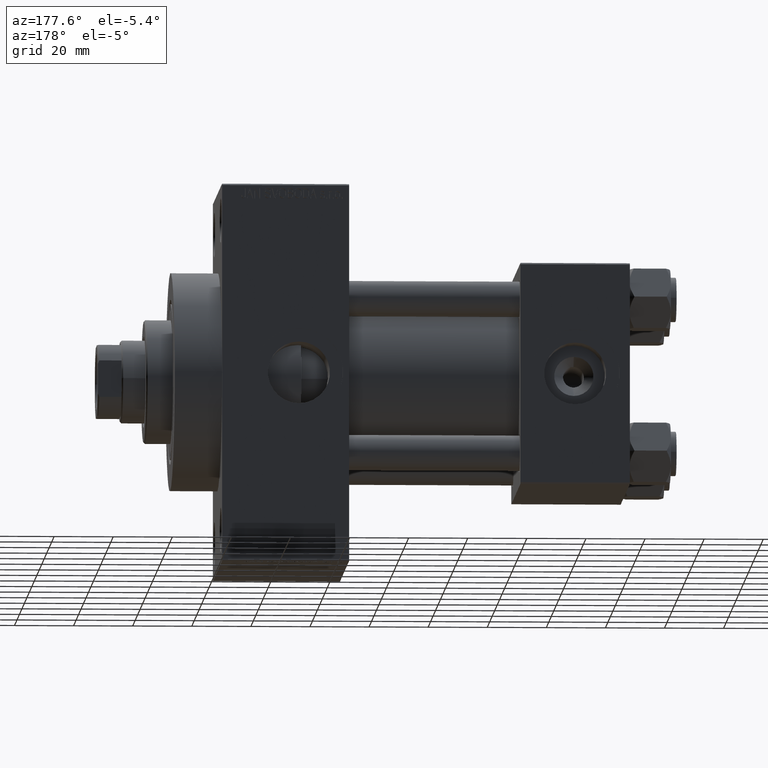
[diagram: clean part render]
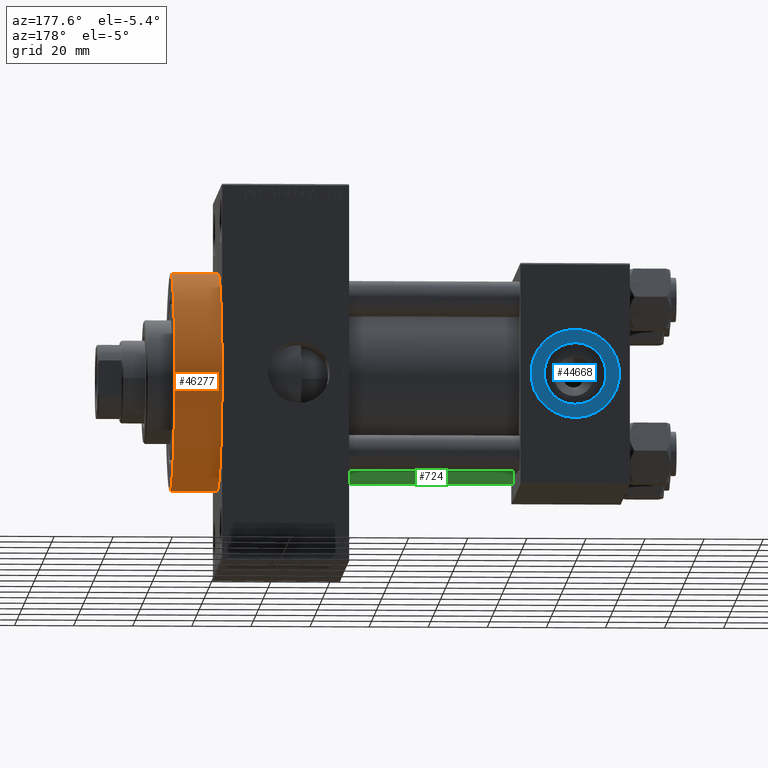
[diagram: same view with three faces highlighted in distinct colors, each labeled with its STEP entity id]
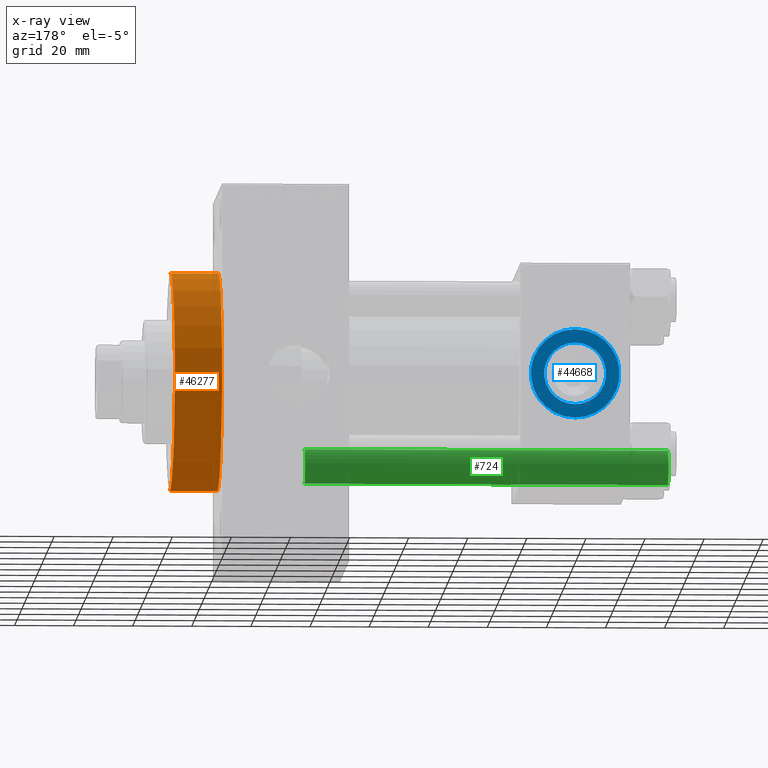
[diagram: x-ray of the same camera — body ghosted, the three highlighted faces saturated]
A machine part, auxiliary view with three faces highlighted in distinct colors.
The next image is the same camera in x-ray (body ghosted, the three faces saturated) — at least one of them is partly hidden behind the body in this view.
Their STEP definitions:

[orange] entity #46277 — the highlighted cylindrical surface (partial cylindrical patch) has radius 37 mm, axis along (-1, -0, -0).
#369 = VERTEX_POINT ( 'NONE', #37200 ) ;
#2930 = VERTEX_POINT ( 'NONE', #41847 ) ;
#3771 = CIRCLE ( 'NONE', #15691, 37.00000000000000000 ) ;
#7061 = VECTOR ( 'NONE', #18352, 1000.000000000000000 ) ;
#7423 = CARTESIAN_POINT ( 'NONE',  ( 154.0000000000000284, 0.000000000000000000, 0.000000000000000000 ) ) ;
#8397 = CARTESIAN_POINT ( 'NONE',  ( 154.0000000000000284, 4.531193156845206793E-15, -37.00000000000000000 ) ) ;
#8796 = ORIENTED_EDGE ( 'NONE', *, *, #17735, .T. ) ;
#10776 = VERTEX_POINT ( 'NONE', #29964 ) ;
#10952 = FACE_OUTER_BOUND ( 'NONE', #17259, .T. ) ;
#11030 = ORIENTED_EDGE ( 'NONE', *, *, #34763, .T. ) ;
#11519 = CARTESIAN_POINT ( 'NONE',  ( 154.0000000000000284, 4.531193156845206793E-15, -37.00000000000000000 ) ) ;
#15125 = DIRECTION ( 'NONE',  ( 1.000000000000000000, 0.000000000000000000, 0.000000000000000000 ) ) ;
#15379 = CYLINDRICAL_SURFACE ( 'NONE', #17065, 37.00000000000000000 ) ;
#15691 = AXIS2_PLACEMENT_3D ( 'NONE', #7423, #15125, #18375 ) ;
#15732 = AXIS2_PLACEMENT_3D ( 'NONE', #20648, #24393, #35809 ) ;
#16569 = CIRCLE ( 'NONE', #15732, 37.00000000000000000 ) ;
#17065 = AXIS2_PLACEMENT_3D ( 'NONE', #18861, #34005, #23098 ) ;
#17259 = EDGE_LOOP ( 'NONE', ( #27310, #8796, #11030, #41631 ) ) ;
#17735 = EDGE_CURVE ( 'NONE', #27940, #369, #45541, .T. ) ;
#18352 = DIRECTION ( 'NONE',  ( -1.000000000000000000, -0.000000000000000000, -0.000000000000000000 ) ) ;
#18375 = DIRECTION ( 'NONE',  ( 0.000000000000000000, 0.000000000000000000, -1.000000000000000000 ) ) ;
#18861 = CARTESIAN_POINT ( 'NONE',  ( 154.0000000000000284, 0.000000000000000000, 0.000000000000000000 ) ) ;
#20648 = CARTESIAN_POINT ( 'NONE',  ( 138.0000000000000000, 0.000000000000000000, 0.000000000000000000 ) ) ;
#23098 = DIRECTION ( 'NONE',  ( 0.000000000000000000, 0.000000000000000000, 1.000000000000000000 ) ) ;
#23349 = VECTOR ( 'NONE', #23437, 1000.000000000000000 ) ;
#23437 = DIRECTION ( 'NONE',  ( -1.000000000000000000, -0.000000000000000000, -0.000000000000000000 ) ) ;
#24393 = DIRECTION ( 'NONE',  ( 1.000000000000000000, 0.000000000000000000, 0.000000000000000000 ) ) ;
#27310 = ORIENTED_EDGE ( 'NONE', *, *, #29467, .F. ) ;
#27940 = VERTEX_POINT ( 'NONE', #8397 ) ;
#29467 = EDGE_CURVE ( 'NONE', #27940, #10776, #3771, .T. ) ;
#29964 = CARTESIAN_POINT ( 'NONE',  ( 154.0000000000000284, 0.000000000000000000, 37.00000000000000000 ) ) ;
#34005 = DIRECTION ( 'NONE',  ( -1.000000000000000000, -0.000000000000000000, -0.000000000000000000 ) ) ;
#34763 = EDGE_CURVE ( 'NONE', #369, #2930, #16569, .T. ) ;
#35575 = EDGE_CURVE ( 'NONE', #10776, #2930, #48433, .T. ) ;
#35809 = DIRECTION ( 'NONE',  ( 0.000000000000000000, 0.000000000000000000, -1.000000000000000000 ) ) ;
#37200 = CARTESIAN_POINT ( 'NONE',  ( 138.0000000000000000, 4.531193156845206793E-15, -37.00000000000000000 ) ) ;
#37242 = CARTESIAN_POINT ( 'NONE',  ( 154.0000000000000284, 0.000000000000000000, 37.00000000000000000 ) ) ;
#41631 = ORIENTED_EDGE ( 'NONE', *, *, #35575, .F. ) ;
#41847 = CARTESIAN_POINT ( 'NONE',  ( 138.0000000000000000, 0.000000000000000000, 37.00000000000000000 ) ) ;
#45541 = LINE ( 'NONE', #11519, #23349 ) ;
#46277 = ADVANCED_FACE ( 'NONE', ( #10952 ), #15379, .T. ) ;
#48433 = LINE ( 'NONE', #37242, #7061 ) ;

[blue] entity #44668 — the highlighted planar face has unit normal (0, 1, 0).
#1672 = DIRECTION ( 'NONE',  ( 0.000000000000000000, 0.000000000000000000, 1.000000000000000000 ) ) ;
#1998 = FACE_BOUND ( 'NONE', #16057, .T. ) ;
#3292 = ORIENTED_EDGE ( 'NONE', *, *, #47752, .T. ) ;
#3618 = DIRECTION ( 'NONE',  ( 0.000000000000000000, 0.000000000000000000, 1.000000000000000000 ) ) ;
#5800 = DIRECTION ( 'NONE',  ( 0.000000000000000000, 0.000000000000000000, 1.000000000000000000 ) ) ;
#6389 = CIRCLE ( 'NONE', #34117, 10.48000000000000043 ) ;
#6399 = AXIS2_PLACEMENT_3D ( 'NONE', #22503, #37661, #3618 ) ;
#6725 = CIRCLE ( 'NONE', #40840, 10.48000000000000043 ) ;
#7015 = EDGE_CURVE ( 'NONE', #22194, #46561, #6389, .T. ) ;
#8645 = DIRECTION ( 'NONE',  ( 0.000000000000000000, 1.000000000000000000, 0.000000000000000000 ) ) ;
#9144 = CARTESIAN_POINT ( 'NONE',  ( 18.50000000000000000, 37.29999999999999005, 0.000000000000000000 ) ) ;
#13198 = DIRECTION ( 'NONE',  ( 0.000000000000000000, 1.000000000000000000, 0.000000000000000000 ) ) ;
#13935 = CARTESIAN_POINT ( 'NONE',  ( 18.50000000000000355, 37.29999999999999005, -15.00000000000000178 ) ) ;
#16057 = EDGE_LOOP ( 'NONE', ( #47993, #39261 ) ) ;
#17148 = DIRECTION ( 'NONE',  ( 0.000000000000000000, -0.000000000000000000, 1.000000000000000000 ) ) ;
#21833 = EDGE_CURVE ( 'NONE', #46561, #22194, #6725, .T. ) ;
#22194 = VERTEX_POINT ( 'NONE', #35545 ) ;
#22503 = CARTESIAN_POINT ( 'NONE',  ( 18.50000000000000000, 37.29999999999999005, 0.000000000000000000 ) ) ;
#22651 = CIRCLE ( 'NONE', #44861, 15.00000000000000178 ) ;
#23284 = CARTESIAN_POINT ( 'NONE',  ( 18.50000000000000000, 37.29999999999999005, -10.48000000000000043 ) ) ;
#23387 = CARTESIAN_POINT ( 'NONE',  ( 18.50000000000000000, 37.29999999999999005, 0.000000000000000000 ) ) ;
#23643 = DIRECTION ( 'NONE',  ( 0.000000000000000000, 0.000000000000000000, 1.000000000000000000 ) ) ;
#24691 = DIRECTION ( 'NONE',  ( 0.000000000000000000, 1.000000000000000000, 0.000000000000000000 ) ) ;
#25728 = AXIS2_PLACEMENT_3D ( 'NONE', #29063, #13198, #17148 ) ;
#27975 = CARTESIAN_POINT ( 'NONE',  ( 18.50000000000000000, 37.29999999999999005, 15.00000000000000178 ) ) ;
#29063 = CARTESIAN_POINT ( 'NONE',  ( 18.50000000000000000, 37.29999999999999005, 0.000000000000000000 ) ) ;
#31573 = DIRECTION ( 'NONE',  ( 0.000000000000000000, 1.000000000000000000, 0.000000000000000000 ) ) ;
#32052 = FACE_OUTER_BOUND ( 'NONE', #33772, .T. ) ;
#32544 = PLANE ( 'NONE',  #25728 ) ;
#33772 = EDGE_LOOP ( 'NONE', ( #46303, #3292 ) ) ;
#34117 = AXIS2_PLACEMENT_3D ( 'NONE', #23387, #31573, #23643 ) ;
#35545 = CARTESIAN_POINT ( 'NONE',  ( 18.50000000000000000, 37.29999999999999005, 10.48000000000000043 ) ) ;
#37661 = DIRECTION ( 'NONE',  ( 0.000000000000000000, 1.000000000000000000, 0.000000000000000000 ) ) ;
#39001 = EDGE_CURVE ( 'NONE', #39180, #40541, #43708, .T. ) ;
#39180 = VERTEX_POINT ( 'NONE', #27975 ) ;
#39261 = ORIENTED_EDGE ( 'NONE', *, *, #21833, .F. ) ;
#40541 = VERTEX_POINT ( 'NONE', #13935 ) ;
#40840 = AXIS2_PLACEMENT_3D ( 'NONE', #43322, #24691, #5800 ) ;
#43322 = CARTESIAN_POINT ( 'NONE',  ( 18.50000000000000000, 37.29999999999999005, 0.000000000000000000 ) ) ;
#43708 = CIRCLE ( 'NONE', #6399, 15.00000000000000178 ) ;
#44668 = ADVANCED_FACE ( 'NONE', ( #1998, #32052 ), #32544, .T. ) ;
#44861 = AXIS2_PLACEMENT_3D ( 'NONE', #9144, #8645, #1672 ) ;
#46303 = ORIENTED_EDGE ( 'NONE', *, *, #39001, .T. ) ;
#46561 = VERTEX_POINT ( 'NONE', #23284 ) ;
#47752 = EDGE_CURVE ( 'NONE', #40541, #39180, #22651, .T. ) ;
#47993 = ORIENTED_EDGE ( 'NONE', *, *, #7015, .F. ) ;

[green] entity #724 — the highlighted cylindrical surface (edge-blend (fillet) strip) has radius 6 mm, axis along (-1, 0, 0).
#724 = ADVANCED_FACE ( 'NONE', ( #3809 ), #33623, .T. ) ;
#1852 = ORIENTED_EDGE ( 'NONE', *, *, #13934, .T. ) ;
#3332 = DIRECTION ( 'NONE',  ( -1.000000000000000000, 0.000000000000000000, 0.000000000000000000 ) ) ;
#3809 = FACE_OUTER_BOUND ( 'NONE', #26119, .T. ) ;
#4306 = CARTESIAN_POINT ( 'NONE',  ( 0.000000000000000000, 0.000000000000000000, 124.0000000000000000 ) ) ;
#7205 = VERTEX_POINT ( 'NONE', #10936 ) ;
#8214 = DIRECTION ( 'NONE',  ( 1.000000000000000000, 0.000000000000000000, 0.000000000000000000 ) ) ;
#8892 = CARTESIAN_POINT ( 'NONE',  ( -6.000000000000000888, 0.000000000000000000, 123.5000000000000426 ) ) ;
#9343 = ORIENTED_EDGE ( 'NONE', *, *, #21949, .F. ) ;
#10464 = CARTESIAN_POINT ( 'NONE',  ( 6.000000000000000888, 7.347880794884120722E-16, 123.5000000000000426 ) ) ;
#10936 = CARTESIAN_POINT ( 'NONE',  ( 6.000000000000000888, 7.347880794884120722E-16, 0.4999999999999865663 ) ) ;
#12701 = DIRECTION ( 'NONE',  ( -0.000000000000000000, -0.000000000000000000, 1.000000000000000000 ) ) ;
#13934 = EDGE_CURVE ( 'NONE', #46672, #35350, #36351, .T. ) ;
#14231 = CIRCLE ( 'NONE', #44372, 6.000000000000000888 ) ;
#14870 = AXIS2_PLACEMENT_3D ( 'NONE', #4306, #26680, #3332 ) ;
#16681 = CIRCLE ( 'NONE', #26173, 6.000000000000000888 ) ;
#17949 = CARTESIAN_POINT ( 'NONE',  ( -6.000000000000000888, 0.000000000000000000, 124.0000000000000000 ) ) ;
#18572 = CARTESIAN_POINT ( 'NONE',  ( 0.000000000000000000, 0.000000000000000000, 123.5000000000000426 ) ) ;
#18843 = DIRECTION ( 'NONE',  ( -0.000000000000000000, -0.000000000000000000, -1.000000000000000000 ) ) ;
#21949 = EDGE_CURVE ( 'NONE', #41300, #7205, #48741, .T. ) ;
#26119 = EDGE_LOOP ( 'NONE', ( #9343, #35465, #1852, #48831 ) ) ;
#26173 = AXIS2_PLACEMENT_3D ( 'NONE', #18572, #48182, #33723 ) ;
#26680 = DIRECTION ( 'NONE',  ( -0.000000000000000000, -0.000000000000000000, -1.000000000000000000 ) ) ;
#27334 = CARTESIAN_POINT ( 'NONE',  ( 0.000000000000000000, 0.000000000000000000, 0.4999999999999865663 ) ) ;
#29125 = DIRECTION ( 'NONE',  ( -0.000000000000000000, -0.000000000000000000, -1.000000000000000000 ) ) ;
#29824 = CARTESIAN_POINT ( 'NONE',  ( -6.000000000000000888, 0.000000000000000000, 0.4999999999999865663 ) ) ;
#32688 = VECTOR ( 'NONE', #18843, 1000.000000000000000 ) ;
#33623 = CYLINDRICAL_SURFACE ( 'NONE', #14870, 6.000000000000000888 ) ;
#33723 = DIRECTION ( 'NONE',  ( 1.000000000000000000, 0.000000000000000000, 0.000000000000000000 ) ) ;
#35350 = VERTEX_POINT ( 'NONE', #29824 ) ;
#35391 = EDGE_CURVE ( 'NONE', #35350, #7205, #14231, .T. ) ;
#35465 = ORIENTED_EDGE ( 'NONE', *, *, #37896, .T. ) ;
#36351 = LINE ( 'NONE', #17949, #32688 ) ;
#37896 = EDGE_CURVE ( 'NONE', #41300, #46672, #16681, .T. ) ;
#41300 = VERTEX_POINT ( 'NONE', #10464 ) ;
#44372 = AXIS2_PLACEMENT_3D ( 'NONE', #27334, #12701, #8214 ) ;
#46672 = VERTEX_POINT ( 'NONE', #8892 ) ;
#48004 = VECTOR ( 'NONE', #29125, 1000.000000000000000 ) ;
#48021 = CARTESIAN_POINT ( 'NONE',  ( 6.000000000000000888, 7.347880794884120722E-16, 124.0000000000000000 ) ) ;
#48182 = DIRECTION ( 'NONE',  ( 0.000000000000000000, 0.000000000000000000, -1.000000000000000000 ) ) ;
#48741 = LINE ( 'NONE', #48021, #48004 ) ;
#48831 = ORIENTED_EDGE ( 'NONE', *, *, #35391, .T. ) ;